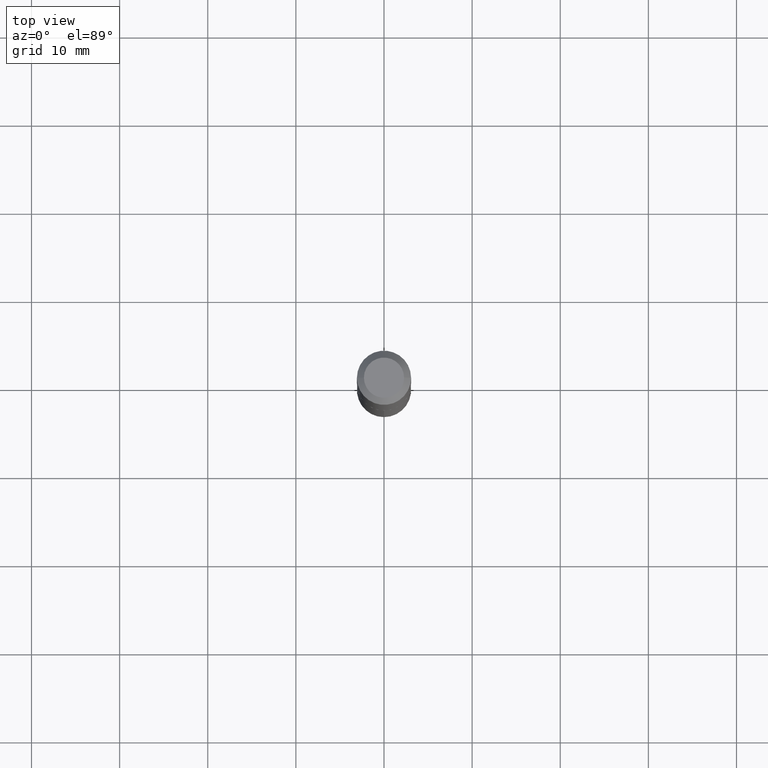
[diagram: clean part render]
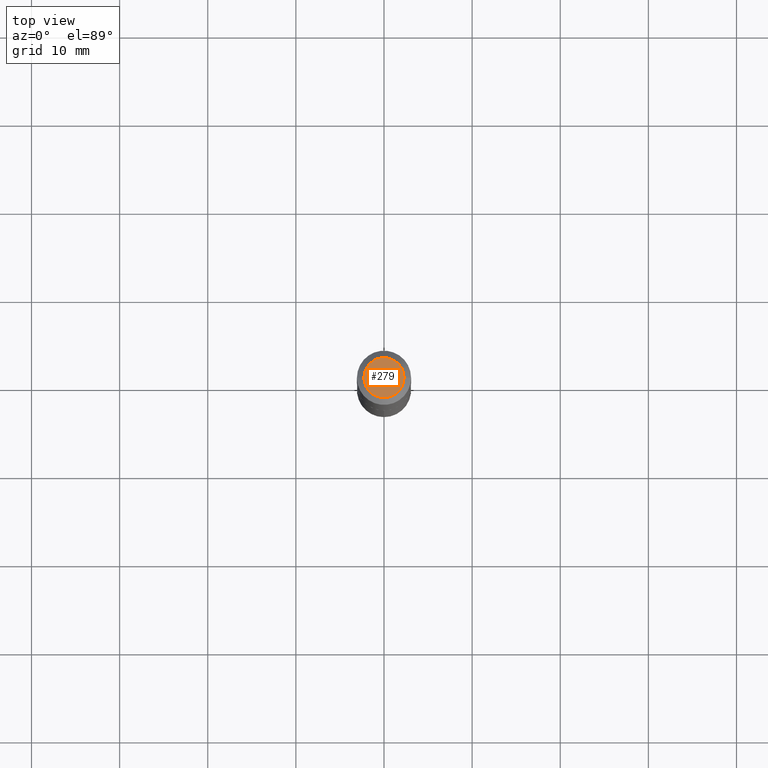
[diagram: same view with one face highlighted and labeled with its STEP entity id]
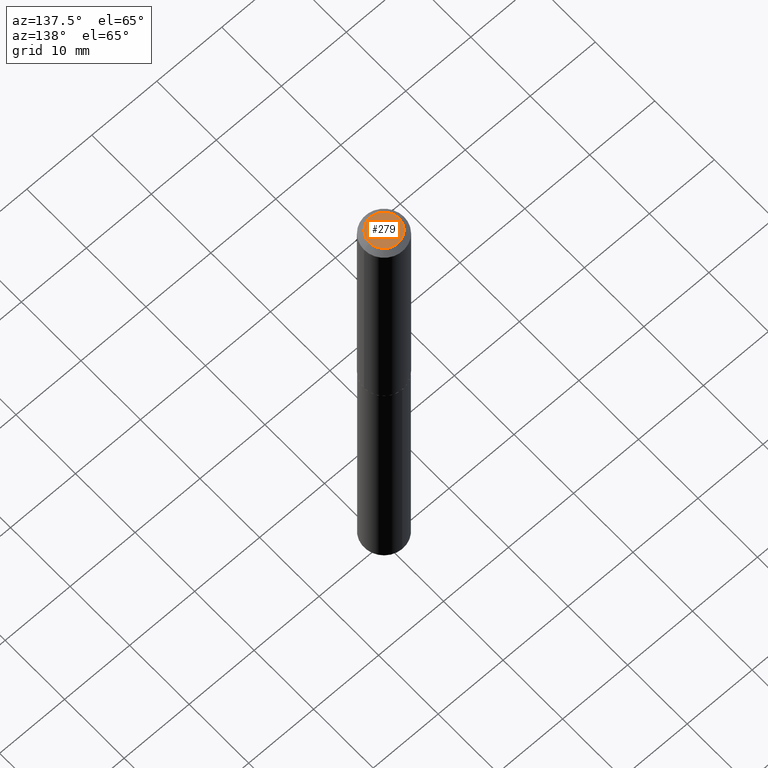
[diagram: same view with one face highlighted and labeled with its STEP entity id]
A machine part, top view. The second image highlights one B-rep face of the part: STEP entity #279.
A second angle (auxiliary view) of the same face is appended — the face is thin or edge-on in the first view.
In plain terms, the highlighted planar face has unit normal (0, -0, -1).
Its self-contained STEP definition (entity closure, byte-faithful):
#3 = CARTESIAN_POINT ( 'NONE',  ( 0.08975000000000001033, -7.774793724345998599E-16, 2.449293598343795834E-19 ) ) ;
#65 = FACE_OUTER_BOUND ( 'NONE', #216, .T. ) ;
#69 = EDGE_CURVE ( 'NONE', #284, #108, #325, .T. ) ;
#71 = AXIS2_PLACEMENT_3D ( 'NONE', #343, #378, #79 ) ;
#79 = DIRECTION ( 'NONE',  ( 1.000000000000000000, -6.982962677686267499E-15, 4.876187661634337776E-29 ) ) ;
#83 = ORIENTED_EDGE ( 'NONE', *, *, #69, .T. ) ;
#108 = VERTEX_POINT ( 'NONE', #3 ) ;
#120 = DIRECTION ( 'NONE',  ( 1.000000000000000000, -6.982962677686267499E-15, 4.876187661634337776E-29 ) ) ;
#123 = CARTESIAN_POINT ( 'NONE',  ( -2.994835545909321190E-48, 4.275831445896965764E-34, 1.224646799147350977E-19 ) ) ;
#135 = AXIS2_PLACEMENT_3D ( 'NONE', #123, #367, #298 ) ;
#178 = PLANE ( 'NONE',  #135 ) ;
#205 = CARTESIAN_POINT ( 'NONE',  ( -5.989671091818642381E-48, 8.551662891793931527E-34, 2.449293598294701954E-19 ) ) ;
#208 = CARTESIAN_POINT ( 'NONE',  ( -0.08975000000000001033, 6.812752962417660252E-16, 2.449293598248967377E-19 ) ) ;
#216 = EDGE_LOOP ( 'NONE', ( #83, #255 ) ) ;
#255 = ORIENTED_EDGE ( 'NONE', *, *, #376, .T. ) ;
#277 = AXIS2_PLACEMENT_3D ( 'NONE', #205, #290, #120 ) ;
#279 = ADVANCED_FACE ( 'NONE', ( #65 ), #178, .F. ) ;
#284 = VERTEX_POINT ( 'NONE', #208 ) ;
#290 = DIRECTION ( 'NONE',  ( -2.445468806185136597E-29, 3.491481338843145583E-15, 1.000000000000000000 ) ) ;
#298 = DIRECTION ( 'NONE',  ( -1.000000000000000000, 6.982962677686265922E-15, -4.876176775795935793E-29 ) ) ;
#325 = CIRCLE ( 'NONE', #277, 0.08975000000000001033 ) ;
#343 = CARTESIAN_POINT ( 'NONE',  ( -5.989671091818642381E-48, 8.551662891793931527E-34, 2.449293598294701954E-19 ) ) ;
#367 = DIRECTION ( 'NONE',  ( 2.438088387897960049E-29, -3.491481338843145188E-15, -1.000000000000000000 ) ) ;
#370 = CIRCLE ( 'NONE', #71, 0.08975000000000001033 ) ;
#376 = EDGE_CURVE ( 'NONE', #108, #284, #370, .T. ) ;
#378 = DIRECTION ( 'NONE',  ( -2.445468806185136597E-29, 3.491481338843145583E-15, 1.000000000000000000 ) ) ;